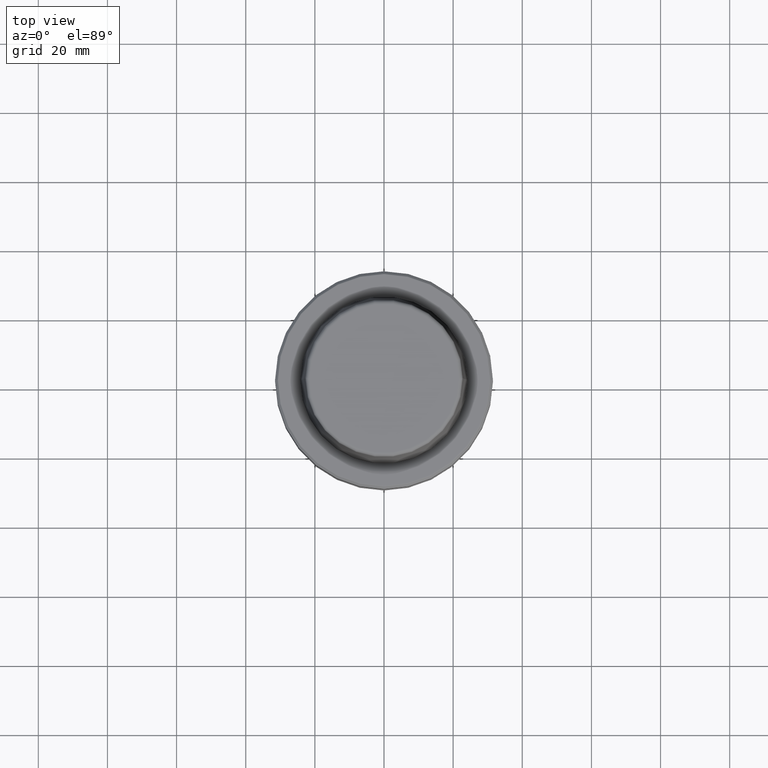
[diagram: clean part render]
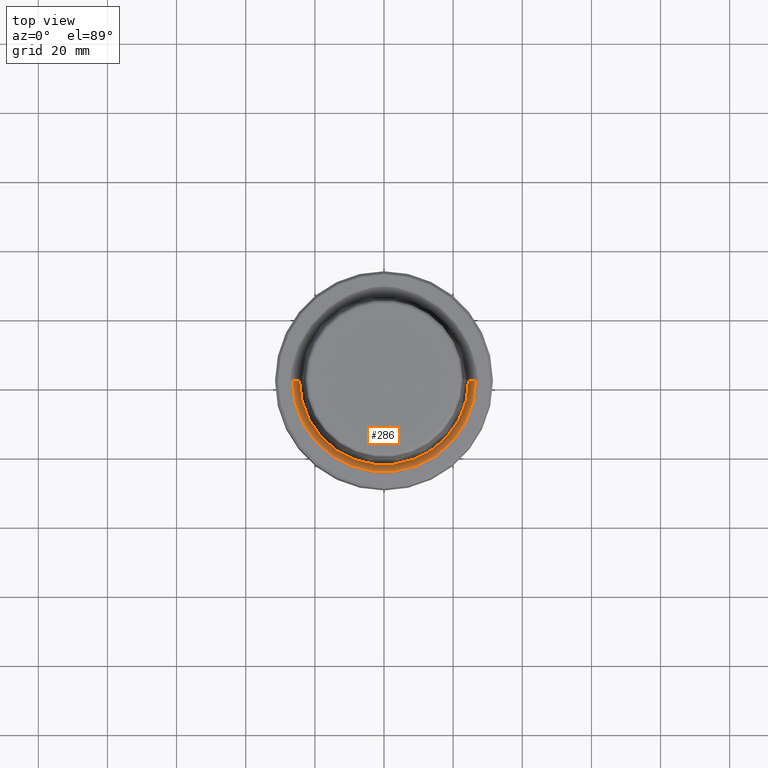
[diagram: same view with one face highlighted and labeled with its STEP entity id]
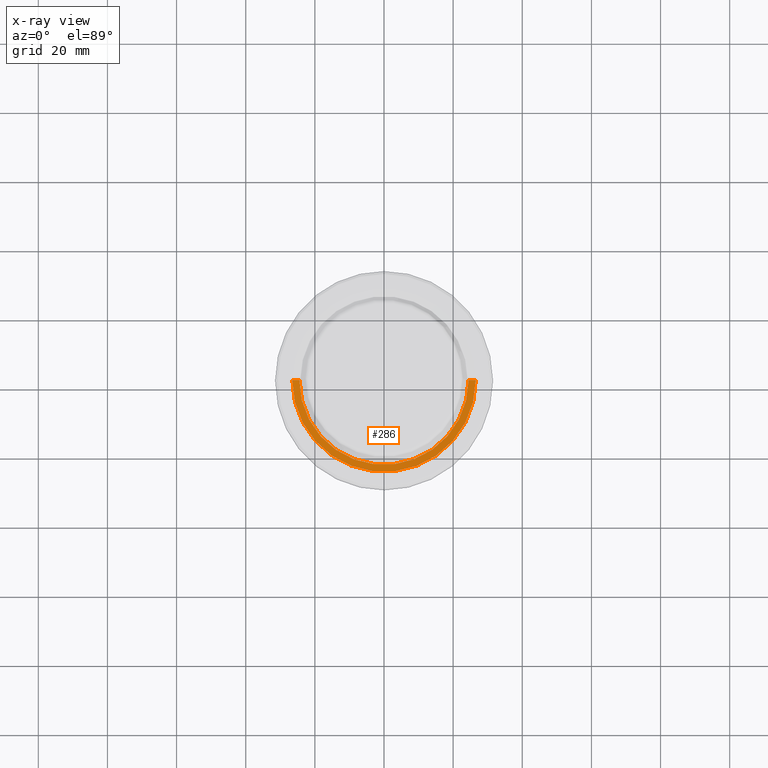
[diagram: x-ray of the same camera — body ghosted, the highlighted face saturated]
A machine part, top view. The second image highlights one B-rep face of the part: STEP entity #286.
The next image is the same camera in x-ray: the body ghosted, the highlighted face saturated — about 0% of this face is hidden behind the body in this view.
In plain terms, the highlighted conical surface has half-angle 80 deg.
Its self-contained STEP definition (entity closure, byte-faithful):
#6 = CARTESIAN_POINT ( 'NONE',  ( -26.52499999999999900, 3.248375634738354300E-015, 0.0000000000000000000 ) ) ;
#46 = DIRECTION ( 'NONE',  ( 0.9848077530122074700, 0.0000000000000000000, 0.1736481776669334700 ) ) ;
#55 = EDGE_CURVE ( 'NONE', #238, #572, #736, .T. ) ;
#179 = CARTESIAN_POINT ( 'NONE',  ( 0.0000000000000000000, 0.0000000000000000000, 0.0000000000000000000 ) ) ;
#238 = VERTEX_POINT ( 'NONE', #1098 ) ;
#275 = DIRECTION ( 'NONE',  ( 1.000000000000000000, 0.0000000000000000000, 0.0000000000000000000 ) ) ;
#283 = VERTEX_POINT ( 'NONE', #410 ) ;
#286 = ADVANCED_FACE ( 'NONE', ( #1213 ), #1183, .F. ) ;
#290 = DIRECTION ( 'NONE',  ( -0.0000000000000000000, -0.0000000000000000000, 1.000000000000000000 ) ) ;
#344 = CARTESIAN_POINT ( 'NONE',  ( 26.52499999999999900, 0.0000000000000000000, 0.0000000000000000000 ) ) ;
#410 = CARTESIAN_POINT ( 'NONE',  ( 24.47682408883346700, 0.0000000000000000000, -0.3611486743758107700 ) ) ;
#451 = CIRCLE ( 'NONE', #1214, 26.52499999999999900 ) ;
#464 = AXIS2_PLACEMENT_3D ( 'NONE', #867, #290, #967 ) ;
#467 = VECTOR ( 'NONE', #602, 1000.000000000000200 ) ;
#468 = EDGE_CURVE ( 'NONE', #572, #637, #451, .T. ) ;
#572 = VERTEX_POINT ( 'NONE', #683 ) ;
#602 = DIRECTION ( 'NONE',  ( -0.9848077530122074700, 1.206041662501897100E-016, 0.1736481776669334700 ) ) ;
#617 = EDGE_LOOP ( 'NONE', ( #1233, #670, #700, #971 ) ) ;
#626 = CIRCLE ( 'NONE', #464, 24.47682408883346700 ) ;
#637 = VERTEX_POINT ( 'NONE', #1079 ) ;
#644 = CARTESIAN_POINT ( 'NONE',  ( 0.0000000000000000000, 0.0000000000000000000, 0.0000000000000000000 ) ) ;
#670 = ORIENTED_EDGE ( 'NONE', *, *, #55, .T. ) ;
#683 = CARTESIAN_POINT ( 'NONE',  ( -26.52499999999999900, 3.248375634738354300E-015, 0.0000000000000000000 ) ) ;
#700 = ORIENTED_EDGE ( 'NONE', *, *, #468, .T. ) ;
#736 = LINE ( 'NONE', #6, #467 ) ;
#741 = VECTOR ( 'NONE', #46, 1000.000000000000200 ) ;
#829 = DIRECTION ( 'NONE',  ( 1.000000000000000000, 0.0000000000000000000, 0.0000000000000000000 ) ) ;
#832 = EDGE_CURVE ( 'NONE', #238, #283, #626, .T. ) ;
#850 = DIRECTION ( 'NONE',  ( -0.0000000000000000000, -0.0000000000000000000, 1.000000000000000000 ) ) ;
#867 = CARTESIAN_POINT ( 'NONE',  ( 0.0000000000000000000, 0.0000000000000000000, -0.3611486743758107700 ) ) ;
#967 = DIRECTION ( 'NONE',  ( 1.000000000000000000, 0.0000000000000000000, 0.0000000000000000000 ) ) ;
#971 = ORIENTED_EDGE ( 'NONE', *, *, #1178, .F. ) ;
#976 = LINE ( 'NONE', #344, #741 ) ;
#1021 = DIRECTION ( 'NONE',  ( -0.0000000000000000000, -0.0000000000000000000, 1.000000000000000000 ) ) ;
#1079 = CARTESIAN_POINT ( 'NONE',  ( 26.52499999999999900, 0.0000000000000000000, 0.0000000000000000000 ) ) ;
#1098 = CARTESIAN_POINT ( 'NONE',  ( -24.47682408883346700, 3.122961031053313900E-015, -0.3611486743758107700 ) ) ;
#1104 = AXIS2_PLACEMENT_3D ( 'NONE', #644, #1021, #829 ) ;
#1178 = EDGE_CURVE ( 'NONE', #283, #637, #976, .T. ) ;
#1183 = CONICAL_SURFACE ( 'NONE', #1104, 26.52499999999999900, 1.396263401595460500 ) ;
#1213 = FACE_OUTER_BOUND ( 'NONE', #617, .T. ) ;
#1214 = AXIS2_PLACEMENT_3D ( 'NONE', #179, #850, #275 ) ;
#1233 = ORIENTED_EDGE ( 'NONE', *, *, #832, .F. ) ;